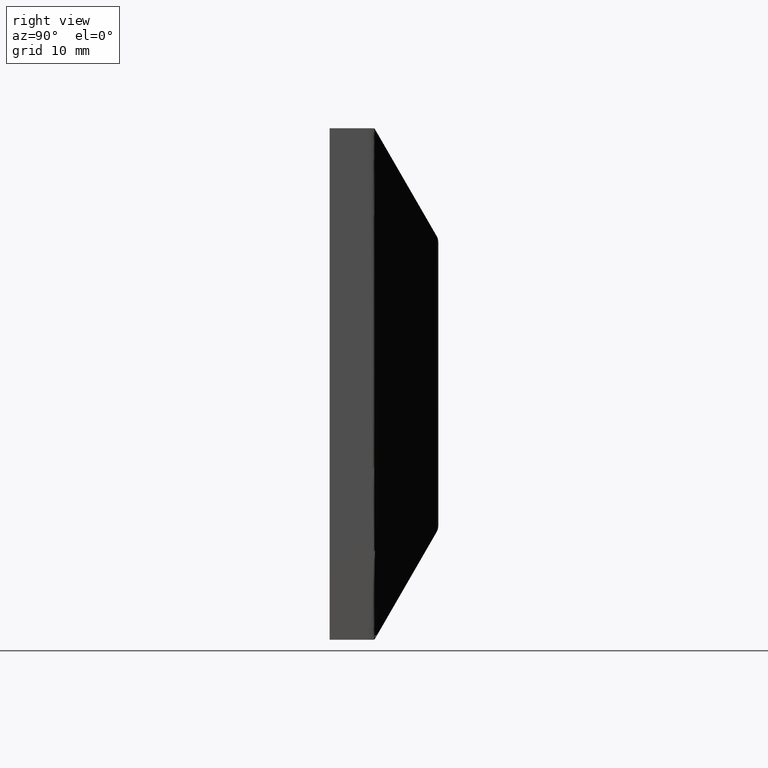
[diagram: clean part render]
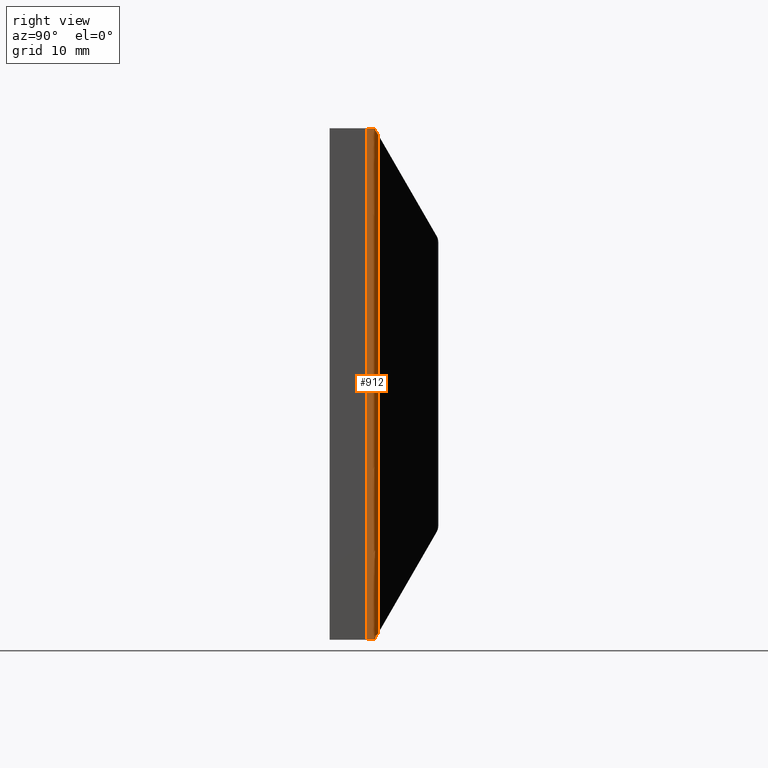
[diagram: same view with one face highlighted and labeled with its STEP entity id]
A machine part, right view. The second image highlights one B-rep face of the part: STEP entity #912.
In plain terms, the highlighted face is a freeform B-spline surface patch.
Its self-contained STEP definition (entity closure, byte-faithful):
#2 = CARTESIAN_POINT ( 'NONE',  ( 39.99999999999998600, 5.845299461620747600, 39.99999999999999300 ) ) ;
#5 = CARTESIAN_POINT ( 'NONE',  ( 39.64549428500631500, 7.203546635178052600, 39.64549428500630100 ) ) ;
#7 = CARTESIAN_POINT ( 'NONE',  ( 39.99996341238345800, 6.085659425924157000, 39.99999723084649600 ) ) ;
#17 = CARTESIAN_POINT ( 'NONE',  ( 39.83371574877211400, 7.092024464092707700, 39.83311883128395400 ) ) ;
#27 = CARTESIAN_POINT ( 'NONE',  ( 39.57048900840656100, 7.247088283422314700, -39.57077457730811400 ) ) ;
#40 = CARTESIAN_POINT ( 'NONE',  ( 39.99822774174361200, 6.844323200559007800, -39.99555916357958600 ) ) ;
#74 = ORIENTED_EDGE ( 'NONE', *, *, #517, .T. ) ;
#75 = CARTESIAN_POINT ( 'NONE',  ( 39.99999999999998600, 5.845299461620747600, -14.66666666666674400 ) ) ;
#76 = CARTESIAN_POINT ( 'NONE',  ( 39.99999999999997900, 5.990232302823548200, -39.99999999999999300 ) ) ;
#84 = CARTESIAN_POINT ( 'NONE',  ( 38.99999999999997900, 7.577350269189627100, 44.00000000000000000 ) ) ;
#90 = CARTESIAN_POINT ( 'NONE',  ( 39.42082463572623400, 7.334093281667203500, 39.42081062329855000 ) ) ;
#91 = CARTESIAN_POINT ( 'NONE',  ( 39.57077457730813600, 7.247088283422290700, 39.57048900840661100 ) ) ;
#98 = CARTESIAN_POINT ( 'NONE',  ( 38.99999999999997900, 7.577350269189627100, -12.99999999999999500 ) ) ;
#101 = EDGE_LOOP ( 'NONE', ( #74, #929, #507, #524 ) ) ;
#102 = CARTESIAN_POINT ( 'NONE',  ( 39.64509293597702600, 7.203780878233273700, 39.64509170071829700 ) ) ;
#106 = CARTESIAN_POINT ( 'NONE',  ( 39.97517742524684100, 6.982355415199969600, 39.97731509431868300 ) ) ;
#124 = CARTESIAN_POINT ( 'NONE',  ( 39.69857256299692200, 7.172541223197686800, -39.69857256299694400 ) ) ;
#128 = CARTESIAN_POINT ( 'NONE',  ( 39.99906956441542100, 6.789521749134324000, -39.99704701742126600 ) ) ;
#132 = CARTESIAN_POINT ( 'NONE',  ( 39.99999999999998600, 5.845299461620747600, -13.33333333333333600 ) ) ;
#135 = CARTESIAN_POINT ( 'NONE',  ( 39.95463018863730300, 7.007990852186011900, -39.95565794252263500 ) ) ;
#144 = CARTESIAN_POINT ( 'NONE',  ( 39.99999999999998600, 5.845299461620748500, 13.33333333333332100 ) ) ;
#162 = FACE_OUTER_BOUND ( 'NONE', #101, .T. ) ;
#163 = CARTESIAN_POINT ( 'NONE',  ( 39.99999999999998600, 5.845299461620747600, 14.66666666666672600 ) ) ;
#176 = CARTESIAN_POINT ( 'NONE',  ( 39.81270341167213200, 7.104799565412038800, 39.81148846067691200 ) ) ;
#181 = CARTESIAN_POINT ( 'NONE',  ( 39.84356973980662500, 7.085993576816493400, 39.84327415620617100 ) ) ;
#188 = CARTESIAN_POINT ( 'NONE',  ( 39.85835442357306100, 7.076826527202265500, 39.85833009332956300 ) ) ;
#192 = CARTESIAN_POINT ( 'NONE',  ( 39.51678468493357600, 7.278466438441795600, 39.51646558689930100 ) ) ;
#197 = CARTESIAN_POINT ( 'NONE',  ( 39.40883666468718600, 7.341005802916926700, -39.40889043577652000 ) ) ;
#205 = CARTESIAN_POINT ( 'NONE',  ( 39.62318270611066100, 7.216534618919302700, -39.62324056038167400 ) ) ;
#208 = CARTESIAN_POINT ( 'NONE',  ( 39.79530858592203700, 7.114274256723237300, -39.79694441402970300 ) ) ;
#245 = CARTESIAN_POINT ( 'NONE',  ( 39.99999999999998600, 7.000000000000000900, -44.00000000000001400 ) ) ;
#249 = CARTESIAN_POINT ( 'NONE',  ( 38.99999999999997900, 7.577350269189627100, 14.66666666666672600 ) ) ;
#253 = CARTESIAN_POINT ( 'NONE',  ( 38.99999999999997900, 7.577350269189627100, 38.99999999999998600 ) ) ;
#255 = EDGE_CURVE ( 'NONE', #877, #484, #682, .T. ) ;
#261 = CARTESIAN_POINT ( 'NONE',  ( 39.95565794252261300, 7.007990852186007500, 39.95463018863734600 ) ) ;
#271 = CARTESIAN_POINT ( 'NONE',  ( 39.98912708443194900, 6.931546638542998900, 39.99291096697459800 ) ) ;
#272 = CARTESIAN_POINT ( 'NONE',  ( 39.99042132576793300, 6.922317819495413400, 39.99415154775402900 ) ) ;
#282 = CARTESIAN_POINT ( 'NONE',  ( 39.31467125644479700, 7.395095323832563800, -39.31543822633413800 ) ) ;
#285 = CARTESIAN_POINT ( 'NONE',  ( 39.51646558689924400, 7.278466438441817000, -39.51678468493353300 ) ) ;
#290 = CARTESIAN_POINT ( 'NONE',  ( 39.99991138708716000, 6.501318209434916900, -39.99940067373629700 ) ) ;
#295 = CARTESIAN_POINT ( 'NONE',  ( 39.97731509431863400, 6.982355415199974000, -39.97517742524686200 ) ) ;
#299 = CARTESIAN_POINT ( 'NONE',  ( 39.90642476406445400, 7.044512754529322700, -39.90894283487893500 ) ) ;
#304 = CARTESIAN_POINT ( 'NONE',  ( 39.99999999999998600, 5.845299461620747600, 39.99999999999999300 ) ) ;
#309 = EDGE_CURVE ( 'NONE', #752, #877, #1029, .T. ) ;
#314 = CARTESIAN_POINT ( 'NONE',  ( 38.99999999999997900, 7.577350269189627100, 38.99999999999998600 ) ) ;
#344 = CARTESIAN_POINT ( 'NONE',  ( 39.38430061226790700, 7.355245143125852500, 39.38410355360567600 ) ) ;
#345 = CARTESIAN_POINT ( 'NONE',  ( 38.99999999999997900, 7.577350269189627100, 38.99999999999998600 ) ) ;
#350 = CARTESIAN_POINT ( 'NONE',  ( 39.99751736766462100, 6.764946561274698800, 39.99929109669745500 ) ) ;
#353 = CARTESIAN_POINT ( 'NONE',  ( 39.86247275930689700, 7.074251190670509900, 39.86247275930691100 ) ) ;
#358 = CARTESIAN_POINT ( 'NONE',  ( 39.99555916357955700, 6.844323200558992700, 39.99822774174364800 ) ) ;
#360 = CARTESIAN_POINT ( 'NONE',  ( 39.09123091585233600, 7.524678075363865100, 39.09123091585232900 ) ) ;
#372 = CARTESIAN_POINT ( 'NONE',  ( 39.64152033545718700, 7.205863582545797300, -39.64152615410341700 ) ) ;
#383 = CARTESIAN_POINT ( 'NONE',  ( 39.99963447173461600, 6.686804960064408800, -39.99840422463028500 ) ) ;
#408 = CARTESIAN_POINT ( 'NONE',  ( 38.99999999999997200, 7.577350269189631500, -38.99999999999999300 ) ) ;
#417 = CARTESIAN_POINT ( 'NONE',  ( 38.99999999999997900, 7.577350269189627100, -14.66666666666674400 ) ) ;
#432 = CARTESIAN_POINT ( 'NONE',  ( 39.61165123492553200, 7.223289697585885300, 39.61153802379626400 ) ) ;
#435 = CARTESIAN_POINT ( 'NONE',  ( 39.88657547159331100, 7.059130726600718800, 39.88657547159332500 ) ) ;
#438 = CARTESIAN_POINT ( 'NONE',  ( 39.90894283487896400, 7.044512754529310300, 39.90642476406451100 ) ) ;
#446 = CARTESIAN_POINT ( 'NONE',  ( 39.81148846067687000, 7.104799565412065500, -39.81270341167211100 ) ) ;
#449 = CARTESIAN_POINT ( 'NONE',  ( 39.42977556190546600, 7.328907971101167500, 39.42977556191085100 ) ) ;
#451 = CARTESIAN_POINT ( 'NONE',  ( 39.42081062329852900, 7.334093281667212400, -39.42082463572621300 ) ) ;
#456 = CARTESIAN_POINT ( 'NONE',  ( 39.42920454259712700, 7.329238156995729400, -39.42920558435225300 ) ) ;
#459 = CARTESIAN_POINT ( 'NONE',  ( 39.64549428500629300, 7.203546635178071300, -39.64549428500631500 ) ) ;
#465 = CARTESIAN_POINT ( 'NONE',  ( 39.99853788693849300, 6.829461214447462700, -39.99606809670005000 ) ) ;
#466 = CARTESIAN_POINT ( 'NONE',  ( 39.84327415620612100, 7.085993576816514800, -39.84356973980664700 ) ) ;
#478 = CARTESIAN_POINT ( 'NONE',  ( 39.99716438678981900, 6.881696860878980400, -39.99397599016424500 ) ) ;
#484 = VERTEX_POINT ( 'NONE', #932 ) ;
#507 = ORIENTED_EDGE ( 'NONE', *, *, #255, .F. ) ;
#514 = CARTESIAN_POINT ( 'NONE',  ( 39.64152615410345200, 7.205863582545781300, 39.64152033545722300 ) ) ;
#515 = CARTESIAN_POINT ( 'NONE',  ( 39.99902396824695900, 6.596248776930417000, 39.99982277417438300 ) ) ;
#517 = EDGE_CURVE ( 'NONE', #752, #560, #888, .T. ) ;
#521 = CARTESIAN_POINT ( 'NONE',  ( 39.99986259767116100, 6.240508034974361400, 39.99998615423237400 ) ) ;
#523 = B_SPLINE_CURVE_WITH_KNOTS ( 'NONE', 3,
 ( #894, #132, #144, #304 ),
 .UNSPECIFIED., .F., .F.,
 ( 4, 4 ),
 ( 0.0000000000000000000, 1.000000000000000000 ),
 .UNSPECIFIED. ) ;
#524 = ORIENTED_EDGE ( 'NONE', *, *, #309, .F. ) ;
#525 = CARTESIAN_POINT ( 'NONE',  ( 39.99882256608201900, 6.630352811135248100, 39.99976739110385900 ) ) ;
#527 = CARTESIAN_POINT ( 'NONE',  ( 38.99999999999997200, 7.577350269189631500, -38.99999999999999300 ) ) ;
#537 = CARTESIAN_POINT ( 'NONE',  ( 39.38410355360566200, 7.355245143125858800, -39.38430061226787900 ) ) ;
#545 = CARTESIAN_POINT ( 'NONE',  ( 39.99976739110386600, 6.630352811135273900, -39.99882256608203300 ) ) ;
#549 = CARTESIAN_POINT ( 'NONE',  ( 39.86247275930687600, 7.074251190670536500, -39.86247275930689000 ) ) ;
#553 = CARTESIAN_POINT ( 'NONE',  ( 39.99955693543589100, 6.708805419948196100, -39.99818703393850000 ) ) ;
#560 = VERTEX_POINT ( 'NONE', #994 ) ;
#591 = CARTESIAN_POINT ( 'NONE',  ( 39.99999999999998600, 5.845299461620747600, 44.00000000000000000 ) ) ;
#598 = CARTESIAN_POINT ( 'NONE',  ( 39.58772518521781300, 7.237226424501707300, 39.58750418994242900 ) ) ;
#602 = CARTESIAN_POINT ( 'NONE',  ( 39.74350006670750400, 7.146122507496129600, 39.74149007860729900 ) ) ;
#606 = CARTESIAN_POINT ( 'NONE',  ( 39.99999999999997900, 5.990232302823534900, 40.00000000000000700 ) ) ;
#608 = CARTESIAN_POINT ( 'NONE',  ( 39.36194645266780200, 7.368183850759411500, 39.36155769749210300 ) ) ;
#611 = CARTESIAN_POINT ( 'NONE',  ( 39.42586325761528300, 7.331174434499907000, 39.42585819193282500 ) ) ;
#619 = CARTESIAN_POINT ( 'NONE',  ( 39.42585819193283200, 7.331174434499917700, -39.42586325761530500 ) ) ;
#621 = CARTESIAN_POINT ( 'NONE',  ( 39.58750418994237900, 7.237226424501722400, -39.58772518521775700 ) ) ;
#626 = CARTESIAN_POINT ( 'NONE',  ( 39.17288994466378700, 7.476845966874892100, -39.17403583188110600 ) ) ;
#637 = CARTESIAN_POINT ( 'NONE',  ( 39.99994461692948300, 6.442287349026054600, -39.99957727566572900 ) ) ;
#669 = CARTESIAN_POINT ( 'NONE',  ( 39.99999723084646100, 6.085659425924170300, -39.99996341238345800 ) ) ;
#682 = B_SPLINE_CURVE_WITH_KNOTS ( 'NONE', 3,
 ( #527, #874, #626, #800, #282, #882, #537, #197, #451, #619, #456, #797, #970, #285, #27, #621, #717, #205, #1048, #372, #973, #459, #124, #722, #208, #446, #1070, #466, #729, #814, #549, #896, #299, #808, #135, #295, #1074, #987, #977, #902, #478, #40, #465, #128, #989, #553, #383, #545, #724, #290, #637, #734, #1068, #669, #76, #863 ),
 .UNSPECIFIED., .F., .F.,
 ( 4, 2, 2, 1, 1, 1, 2, 2, 2, 2, 1, 1, 2, 2, 2, 2, 1, 2, 2, 2, 2, 2, 2, 2, 2, 2, 2, 2, 2, 2, 4 ),
 ( 0.0000000000000000000, 0.1249999999997755400, 0.1874999999996631300, 0.2187499999996009300, 0.2343749999995668200, 0.2421874999995531100, 0.2460937499995499700, 0.2499999999995468100, 0.3124999999995561900, 0.3437499999995583000, 0.3593749999995566900, 0.3671874999995527500, 0.3710937499995508000, 0.3749999999995488100, 0.4374999999995878300, 0.4687499999996045400, 0.4843749999996130900, 0.4921874999996247400, 0.4999999999996362900, 0.6249999999997270000, 0.7499999999998177000, 0.8749999999999085200, 0.9062499999999308300, 0.9374999999999532600, 0.9531249999999649200, 0.9687499999999765700, 0.9765624999999824600, 0.9843749999999883400, 0.9921874999999941200, 0.9960937499999971100, 1.000000000000000000 ),
 .UNSPECIFIED. ) ;
#694 = CARTESIAN_POINT ( 'NONE',  ( 39.62324056038167400, 7.216534618919279600, 39.62318270611068300 ) ) ;
#696 = CARTESIAN_POINT ( 'NONE',  ( 39.63613262375771700, 7.209012354710417000, 39.63611675823904100 ) ) ;
#703 = CARTESIAN_POINT ( 'NONE',  ( 39.85255007633598000, 7.080434644442760800, 39.85243969055647300 ) ) ;
#706 = CARTESIAN_POINT ( 'NONE',  ( 39.42920558435226800, 7.329238156995718800, 39.42920454259715500 ) ) ;
#717 = CARTESIAN_POINT ( 'NONE',  ( 39.61153802379622800, 7.223289697585903100, -39.61165123492548900 ) ) ;
#722 = CARTESIAN_POINT ( 'NONE',  ( 39.74149007860722800, 7.146122507496154500, -39.74350006670743300 ) ) ;
#724 = CARTESIAN_POINT ( 'NONE',  ( 39.99982277417435500, 6.596248776930441000, -39.99902396824696600 ) ) ;
#729 = CARTESIAN_POINT ( 'NONE',  ( 39.85243969055640200, 7.080434644442784800, -39.85255007633598000 ) ) ;
#734 = CARTESIAN_POINT ( 'NONE',  ( 39.99997784677178500, 6.298039662259155200, -39.99979700383959600 ) ) ;
#752 = VERTEX_POINT ( 'NONE', #314 ) ;
#762 = CARTESIAN_POINT ( 'NONE',  ( 38.99999999999997900, 7.577350269189627100, 13.00000000000000200 ) ) ;
#772 = CARTESIAN_POINT ( 'NONE',  ( 39.47647947002260300, 7.301849039727306600, 39.47647947002799600 ) ) ;
#777 = CARTESIAN_POINT ( 'NONE',  ( 39.94303102127709300, 7.019107698105657700, 39.94045212258650700 ) ) ;
#782 = CARTESIAN_POINT ( 'NONE',  ( 39.99284562183921600, 6.897160656430328300, 39.99627825766166500 ) ) ;
#784 = CARTESIAN_POINT ( 'NONE',  ( 39.99704701742124500, 6.789521749134302700, 39.99906956441542100 ) ) ;
#789 = CARTESIAN_POINT ( 'NONE',  ( 39.69857256299695800, 7.172541223197659300, 39.69857256299696500 ) ) ;
#797 = CARTESIAN_POINT ( 'NONE',  ( 39.42977556191083700, 7.328907971101177300, -39.42977556190545800 ) ) ;
#800 = CARTESIAN_POINT ( 'NONE',  ( 39.28102065731970800, 7.414421264792849800, -39.28202208530044700 ) ) ;
#808 = CARTESIAN_POINT ( 'NONE',  ( 39.94045212258645000, 7.019107698105661300, -39.94303102127706500 ) ) ;
#814 = CARTESIAN_POINT ( 'NONE',  ( 39.85833009332949900, 7.076826527202287700, -39.85835442357305400 ) ) ;
#843 = CARTESIAN_POINT ( 'NONE',  ( 38.99999999999997200, 7.577350269189631500, -38.99999999999999300 ) ) ;
#851 = CARTESIAN_POINT ( 'NONE',  ( 39.99999999999998600, 7.000000000000000900, 14.66666666666670500 ) ) ;
#855 = CARTESIAN_POINT ( 'NONE',  ( 39.79694441402972400, 7.114274256723208900, 39.79530858592209300 ) ) ;
#858 = CARTESIAN_POINT ( 'NONE',  ( 39.99397599016422300, 6.881696860878968800, 39.99716438678984100 ) ) ;
#862 = CARTESIAN_POINT ( 'NONE',  ( 39.40889043577651300, 7.341005802916917000, 39.40883666468719300 ) ) ;
#863 = CARTESIAN_POINT ( 'NONE',  ( 39.99999999999998600, 5.845299461620747600, -40.00000000000000700 ) ) ;
#869 = CARTESIAN_POINT ( 'NONE',  ( 39.28202208530043300, 7.414421264792842700, 39.28102065731969400 ) ) ;
#871 = CARTESIAN_POINT ( 'NONE',  ( 39.99957727566572900, 6.442287349026027100, 39.99994461692950400 ) ) ;
#874 = CARTESIAN_POINT ( 'NONE',  ( 39.09123091585232100, 7.524678075363860700, -39.09123091585233600 ) ) ;
#877 = VERTEX_POINT ( 'NONE', #408 ) ;
#882 = CARTESIAN_POINT ( 'NONE',  ( 39.36155769749207400, 7.368183850759422200, -39.36194645266778700 ) ) ;
#888 = B_SPLINE_CURVE_WITH_KNOTS ( 'NONE', 3,
 ( #253, #360, #960, #869, #953, #608, #344, #862, #90, #611, #706, #449, #772, #192, #91, #598, #432, #694, #696, #514, #102, #5, #789, #602, #855, #176, #17, #181, #703, #188, #353, #435, #438, #777, #261, #106, #945, #271, #272, #782, #858, #358, #1046, #784, #350, #947, #1035, #525, #515, #1042, #871, #1038, #521, #7, #606, #2 ),
 .UNSPECIFIED., .F., .F.,
 ( 4, 2, 2, 1, 1, 1, 2, 2, 2, 2, 1, 1, 2, 2, 2, 2, 1, 2, 2, 2, 2, 2, 2, 2, 2, 2, 2, 2, 2, 2, 4 ),
 ( 0.0000000000000000000, 0.1250000000003765900, 0.1875000000005672700, 0.2187500000006566400, 0.2343750000007045800, 0.2421875000007251700, 0.2460937500007318000, 0.2500000000007384100, 0.3125000000007840400, 0.3437500000008094100, 0.3593750000008250100, 0.3671875000008299500, 0.3710937500008323900, 0.3750000000008348300, 0.4375000000008511500, 0.4687500000008593100, 0.4843750000008633600, 0.4921875000008578100, 0.5000000000008522100, 0.6250000000006357100, 0.7500000000004191100, 0.8750000000002025000, 0.9062500000001511000, 0.9375000000000997000, 0.9531250000000746100, 0.9687500000000495200, 0.9765625000000371900, 0.9843750000000248700, 0.9921875000000125500, 0.9960937500000063300, 1.000000000000000000 ),
 .UNSPECIFIED. ) ;
#894 = CARTESIAN_POINT ( 'NONE',  ( 39.99999999999998600, 5.845299461620747600, -40.00000000000000700 ) ) ;
#896 = CARTESIAN_POINT ( 'NONE',  ( 39.88657547159329700, 7.059130726600740100, -39.88657547159331100 ) ) ;
#902 = CARTESIAN_POINT ( 'NONE',  ( 39.99627825766165000, 6.897160656430337200, -39.99284562183922300 ) ) ;
#912 = ADVANCED_FACE ( 'NONE', ( #162 ), #922, .T. ) ;
#922 =( BOUNDED_SURFACE ( )  B_SPLINE_SURFACE ( 2, 3, ( 
 ( #1028, #75, #163, #591 ),
 ( #245, #933, #851, #1116 ),
 ( #931, #417, #249, #84 ) ),
 .UNSPECIFIED., .F., .F., .T. ) 
 B_SPLINE_SURFACE_WITH_KNOTS ( ( 3, 3 ),
 ( 4, 4 ),
 ( 0.0000000000000000000, 1.000000000000000000 ),
 ( -0.08400000000000000500, 0.004000000000000000100 ),
 .UNSPECIFIED. ) 
 GEOMETRIC_REPRESENTATION_ITEM ( )  RATIONAL_B_SPLINE_SURFACE ( (
 ( 1.000000000000000000, 1.000000000000000000, 1.000000000000000000, 1.000000000000000000),
 ( 17.32050807568875700, 17.32050807568875700, 17.32050807568875700, 17.32050807568875700),
 ( 1.000000000000000000, 1.000000000000000000, 1.000000000000000000, 1.000000000000000000) ) ) 
 REPRESENTATION_ITEM ( '' )  SURFACE ( )  );
#929 = ORIENTED_EDGE ( 'NONE', *, *, #1045, .F. ) ;
#931 = CARTESIAN_POINT ( 'NONE',  ( 38.99999999999997900, 7.577350269189627100, -44.00000000000001400 ) ) ;
#932 = CARTESIAN_POINT ( 'NONE',  ( 39.99999999999998600, 5.845299461620747600, -40.00000000000000700 ) ) ;
#933 = CARTESIAN_POINT ( 'NONE',  ( 39.99999999999998600, 7.000000000000000900, -14.66666666666672600 ) ) ;
#945 = CARTESIAN_POINT ( 'NONE',  ( 39.98218343734277600, 6.970513496206448800, 39.98582193394918200 ) ) ;
#947 = CARTESIAN_POINT ( 'NONE',  ( 39.99818703393850000, 6.708805419948176600, 39.99955693543592600 ) ) ;
#953 = CARTESIAN_POINT ( 'NONE',  ( 39.31543822633412300, 7.395095323832555000, 39.31467125644479700 ) ) ;
#960 = CARTESIAN_POINT ( 'NONE',  ( 39.17403583188107800, 7.476845966874893900, 39.17288994466378000 ) ) ;
#970 = CARTESIAN_POINT ( 'NONE',  ( 39.47647947002796800, 7.301849039727323500, -39.47647947002258200 ) ) ;
#973 = CARTESIAN_POINT ( 'NONE',  ( 39.64509170071826800, 7.203780878233290600, -39.64509293597699000 ) ) ;
#977 = CARTESIAN_POINT ( 'NONE',  ( 39.99415154775402900, 6.922317819495424000, -39.99042132576796900 ) ) ;
#987 = CARTESIAN_POINT ( 'NONE',  ( 39.99291096697456300, 6.931546638543006000, -39.98912708443197100 ) ) ;
#989 = CARTESIAN_POINT ( 'NONE',  ( 39.99929109669744100, 6.764946561274718400, -39.99751736766462800 ) ) ;
#994 = CARTESIAN_POINT ( 'NONE',  ( 39.99999999999998600, 5.845299461620747600, 39.99999999999999300 ) ) ;
#1028 = CARTESIAN_POINT ( 'NONE',  ( 39.99999999999998600, 5.845299461620747600, -44.00000000000001400 ) ) ;
#1029 = B_SPLINE_CURVE_WITH_KNOTS ( 'NONE', 3,
 ( #345, #762, #98, #843 ),
 .UNSPECIFIED., .F., .F.,
 ( 4, 4 ),
 ( 0.0000000000000000000, 1.000000000000000000 ),
 .UNSPECIFIED. ) ;
#1035 = CARTESIAN_POINT ( 'NONE',  ( 39.99840422463027800, 6.686804960064387500, 39.99963447173462300 ) ) ;
#1038 = CARTESIAN_POINT ( 'NONE',  ( 39.99979700383958200, 6.298039662259130400, 39.99997784677181300 ) ) ;
#1042 = CARTESIAN_POINT ( 'NONE',  ( 39.99940067373626800, 6.501318209434890200, 39.99991138708718100 ) ) ;
#1045 = EDGE_CURVE ( 'NONE', #484, #560, #523, .T. ) ;
#1046 = CARTESIAN_POINT ( 'NONE',  ( 39.99606809670004300, 6.829461214447445800, 39.99853788693850000 ) ) ;
#1048 = CARTESIAN_POINT ( 'NONE',  ( 39.63611675823899100, 7.209012354710433900, -39.63613262375770300 ) ) ;
#1068 = CARTESIAN_POINT ( 'NONE',  ( 39.99998615423236700, 6.240508034974386200, -39.99986259767118200 ) ) ;
#1070 = CARTESIAN_POINT ( 'NONE',  ( 39.83311883128391200, 7.092024464092737000, -39.83371574877211400 ) ) ;
#1074 = CARTESIAN_POINT ( 'NONE',  ( 39.98582193394916800, 6.970513496206456800, -39.98218343734280500 ) ) ;
#1116 = CARTESIAN_POINT ( 'NONE',  ( 39.99999999999998600, 7.000000000000000900, 43.99999999999999300 ) ) ;